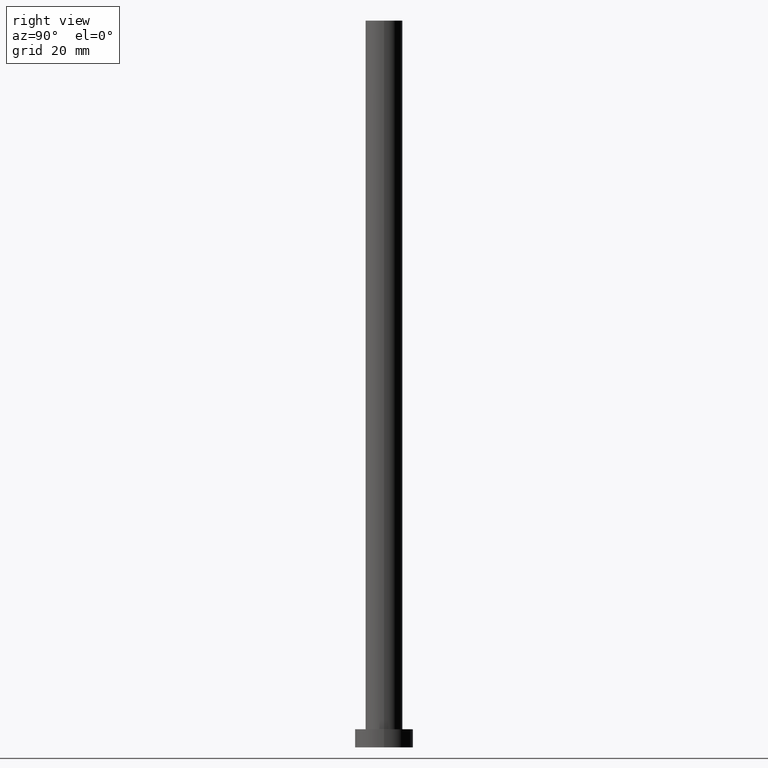
[diagram: clean part render]
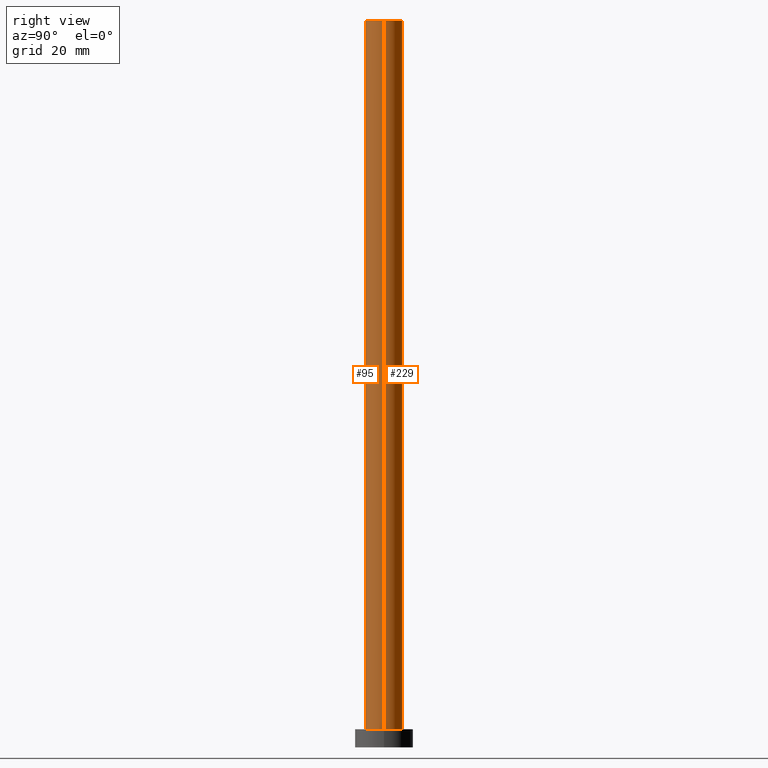
[diagram: same view with one multi-face feature highlighted, each face labeled with its STEP entity id]
A machine part, right view. The highlighted faces form ONE feature: a constant-radius fillet chain: 2 tangent blend faces with common blend radius 5.1 mm. The faces share edges in the B-rep.
Their STEP definitions:
[1] entity #95 (Cylinder):
#4 = CARTESIAN_POINT ( 'NONE',  ( 0.000000000000000000, 0.000000000000000000, 200.0000000000000000 ) ) ;
#18 = ORIENTED_EDGE ( 'NONE', *, *, #233, .T. ) ;
#21 = LINE ( 'NONE', #159, #189 ) ;
#24 = VERTEX_POINT ( 'NONE', #25 ) ;
#25 = CARTESIAN_POINT ( 'NONE',  ( -5.099999999999999645, 0.000000000000000000, 200.0000000000000000 ) ) ;
#35 = ORIENTED_EDGE ( 'NONE', *, *, #104, .T. ) ;
#40 = AXIS2_PLACEMENT_3D ( 'NONE', #241, #180, #79 ) ;
#44 = CIRCLE ( 'NONE', #205, 5.099999999999999645 ) ;
#45 = CARTESIAN_POINT ( 'NONE',  ( -5.099999999999999645, 0.000000000000000000, 200.0000000000000000 ) ) ;
#46 = EDGE_CURVE ( 'NONE', #24, #125, #135, .T. ) ;
#57 = EDGE_LOOP ( 'NONE', ( #191, #227, #35, #18 ) ) ;
#67 = LINE ( 'NONE', #45, #230 ) ;
#70 = CARTESIAN_POINT ( 'NONE',  ( 5.099999999999999645, 6.245698675651500839E-16, 5.000000000000000000 ) ) ;
#79 = DIRECTION ( 'NONE',  ( -1.000000000000000000, 0.000000000000000000, 0.000000000000000000 ) ) ;
#80 = DIRECTION ( 'NONE',  ( 0.000000000000000000, 0.000000000000000000, 1.000000000000000000 ) ) ;
#88 = EDGE_CURVE ( 'NONE', #125, #243, #21, .T. ) ;
#94 = AXIS2_PLACEMENT_3D ( 'NONE', #4, #80, #99 ) ;
#95 = ADVANCED_FACE ( 'NONE', ( #163 ), #224, .T. ) ;
#99 = DIRECTION ( 'NONE',  ( 1.000000000000000000, 0.000000000000000000, 0.000000000000000000 ) ) ;
#104 = EDGE_CURVE ( 'NONE', #24, #217, #67, .T. ) ;
#108 = CARTESIAN_POINT ( 'NONE',  ( 0.000000000000000000, 0.000000000000000000, 5.000000000000000000 ) ) ;
#119 = DIRECTION ( 'NONE',  ( -0.000000000000000000, -0.000000000000000000, -1.000000000000000000 ) ) ;
#124 = CARTESIAN_POINT ( 'NONE',  ( -5.099999999999999645, 0.000000000000000000, 5.000000000000000000 ) ) ;
#125 = VERTEX_POINT ( 'NONE', #176 ) ;
#135 = CIRCLE ( 'NONE', #94, 5.099999999999999645 ) ;
#159 = CARTESIAN_POINT ( 'NONE',  ( 5.099999999999999645, 6.245698675651500839E-16, 200.0000000000000000 ) ) ;
#163 = FACE_OUTER_BOUND ( 'NONE', #57, .T. ) ;
#176 = CARTESIAN_POINT ( 'NONE',  ( 5.099999999999999645, 6.245698675651500839E-16, 200.0000000000000000 ) ) ;
#180 = DIRECTION ( 'NONE',  ( -0.000000000000000000, -0.000000000000000000, -1.000000000000000000 ) ) ;
#183 = DIRECTION ( 'NONE',  ( 1.000000000000000000, 0.000000000000000000, 0.000000000000000000 ) ) ;
#189 = VECTOR ( 'NONE', #240, 1000.000000000000000 ) ;
#191 = ORIENTED_EDGE ( 'NONE', *, *, #88, .F. ) ;
#205 = AXIS2_PLACEMENT_3D ( 'NONE', #108, #207, #183 ) ;
#207 = DIRECTION ( 'NONE',  ( 0.000000000000000000, 0.000000000000000000, 1.000000000000000000 ) ) ;
#217 = VERTEX_POINT ( 'NONE', #124 ) ;
#224 = CYLINDRICAL_SURFACE ( 'NONE', #40, 5.099999999999999645 ) ;
#227 = ORIENTED_EDGE ( 'NONE', *, *, #46, .F. ) ;
#230 = VECTOR ( 'NONE', #119, 1000.000000000000000 ) ;
#233 = EDGE_CURVE ( 'NONE', #217, #243, #44, .T. ) ;
#240 = DIRECTION ( 'NONE',  ( -0.000000000000000000, -0.000000000000000000, -1.000000000000000000 ) ) ;
#241 = CARTESIAN_POINT ( 'NONE',  ( 0.000000000000000000, 0.000000000000000000, 200.0000000000000000 ) ) ;
#243 = VERTEX_POINT ( 'NONE', #70 ) ;
[2] entity #229 (Cylinder):
#11 = CARTESIAN_POINT ( 'NONE',  ( 0.000000000000000000, 0.000000000000000000, 200.0000000000000000 ) ) ;
#21 = LINE ( 'NONE', #159, #189 ) ;
#24 = VERTEX_POINT ( 'NONE', #25 ) ;
#25 = CARTESIAN_POINT ( 'NONE',  ( -5.099999999999999645, 0.000000000000000000, 200.0000000000000000 ) ) ;
#43 = EDGE_LOOP ( 'NONE', ( #221, #225, #112, #251 ) ) ;
#45 = CARTESIAN_POINT ( 'NONE',  ( -5.099999999999999645, 0.000000000000000000, 200.0000000000000000 ) ) ;
#47 = DIRECTION ( 'NONE',  ( 0.000000000000000000, 0.000000000000000000, 1.000000000000000000 ) ) ;
#49 = DIRECTION ( 'NONE',  ( 1.000000000000000000, 0.000000000000000000, 0.000000000000000000 ) ) ;
#52 = DIRECTION ( 'NONE',  ( -0.000000000000000000, -0.000000000000000000, -1.000000000000000000 ) ) ;
#54 = AXIS2_PLACEMENT_3D ( 'NONE', #127, #52, #182 ) ;
#67 = LINE ( 'NONE', #45, #230 ) ;
#70 = CARTESIAN_POINT ( 'NONE',  ( 5.099999999999999645, 6.245698675651500839E-16, 5.000000000000000000 ) ) ;
#88 = EDGE_CURVE ( 'NONE', #125, #243, #21, .T. ) ;
#90 = CIRCLE ( 'NONE', #126, 5.099999999999999645 ) ;
#104 = EDGE_CURVE ( 'NONE', #24, #217, #67, .T. ) ;
#105 = FACE_OUTER_BOUND ( 'NONE', #43, .T. ) ;
#112 = ORIENTED_EDGE ( 'NONE', *, *, #121, .T. ) ;
#119 = DIRECTION ( 'NONE',  ( -0.000000000000000000, -0.000000000000000000, -1.000000000000000000 ) ) ;
#121 = EDGE_CURVE ( 'NONE', #243, #217, #218, .T. ) ;
#124 = CARTESIAN_POINT ( 'NONE',  ( -5.099999999999999645, 0.000000000000000000, 5.000000000000000000 ) ) ;
#125 = VERTEX_POINT ( 'NONE', #176 ) ;
#126 = AXIS2_PLACEMENT_3D ( 'NONE', #11, #144, #226 ) ;
#127 = CARTESIAN_POINT ( 'NONE',  ( 0.000000000000000000, 0.000000000000000000, 200.0000000000000000 ) ) ;
#144 = DIRECTION ( 'NONE',  ( 0.000000000000000000, 0.000000000000000000, 1.000000000000000000 ) ) ;
#159 = CARTESIAN_POINT ( 'NONE',  ( 5.099999999999999645, 6.245698675651500839E-16, 200.0000000000000000 ) ) ;
#176 = CARTESIAN_POINT ( 'NONE',  ( 5.099999999999999645, 6.245698675651500839E-16, 200.0000000000000000 ) ) ;
#182 = DIRECTION ( 'NONE',  ( -1.000000000000000000, 0.000000000000000000, 0.000000000000000000 ) ) ;
#189 = VECTOR ( 'NONE', #240, 1000.000000000000000 ) ;
#201 = AXIS2_PLACEMENT_3D ( 'NONE', #223, #47, #49 ) ;
#217 = VERTEX_POINT ( 'NONE', #124 ) ;
#218 = CIRCLE ( 'NONE', #201, 5.099999999999999645 ) ;
#221 = ORIENTED_EDGE ( 'NONE', *, *, #245, .F. ) ;
#223 = CARTESIAN_POINT ( 'NONE',  ( 0.000000000000000000, 0.000000000000000000, 5.000000000000000000 ) ) ;
#225 = ORIENTED_EDGE ( 'NONE', *, *, #88, .T. ) ;
#226 = DIRECTION ( 'NONE',  ( 1.000000000000000000, 0.000000000000000000, 0.000000000000000000 ) ) ;
#229 = ADVANCED_FACE ( 'NONE', ( #105 ), #244, .T. ) ;
#230 = VECTOR ( 'NONE', #119, 1000.000000000000000 ) ;
#240 = DIRECTION ( 'NONE',  ( -0.000000000000000000, -0.000000000000000000, -1.000000000000000000 ) ) ;
#243 = VERTEX_POINT ( 'NONE', #70 ) ;
#244 = CYLINDRICAL_SURFACE ( 'NONE', #54, 5.099999999999999645 ) ;
#245 = EDGE_CURVE ( 'NONE', #125, #24, #90, .T. ) ;
#251 = ORIENTED_EDGE ( 'NONE', *, *, #104, .F. ) ;